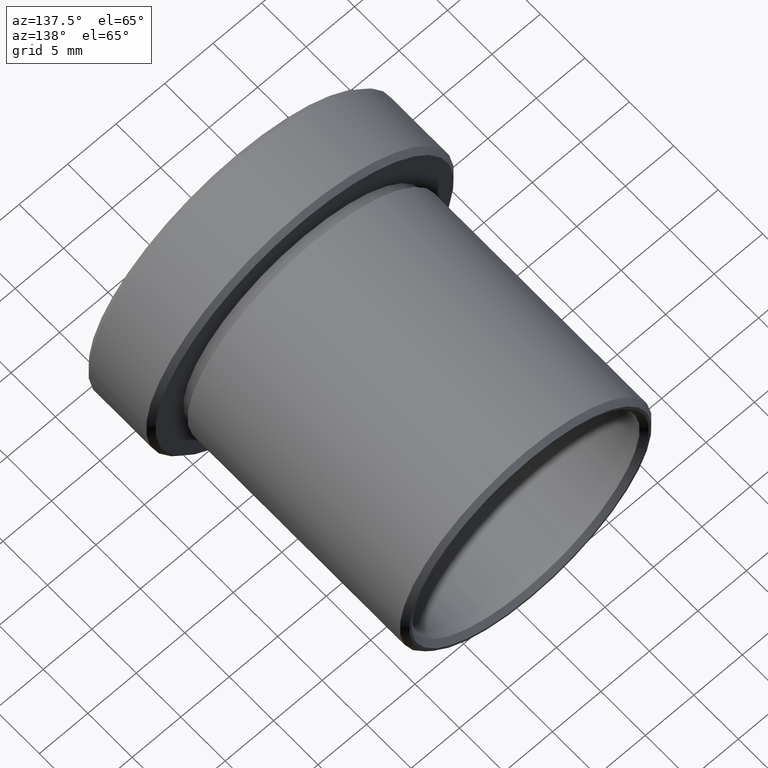
[diagram: clean part render]
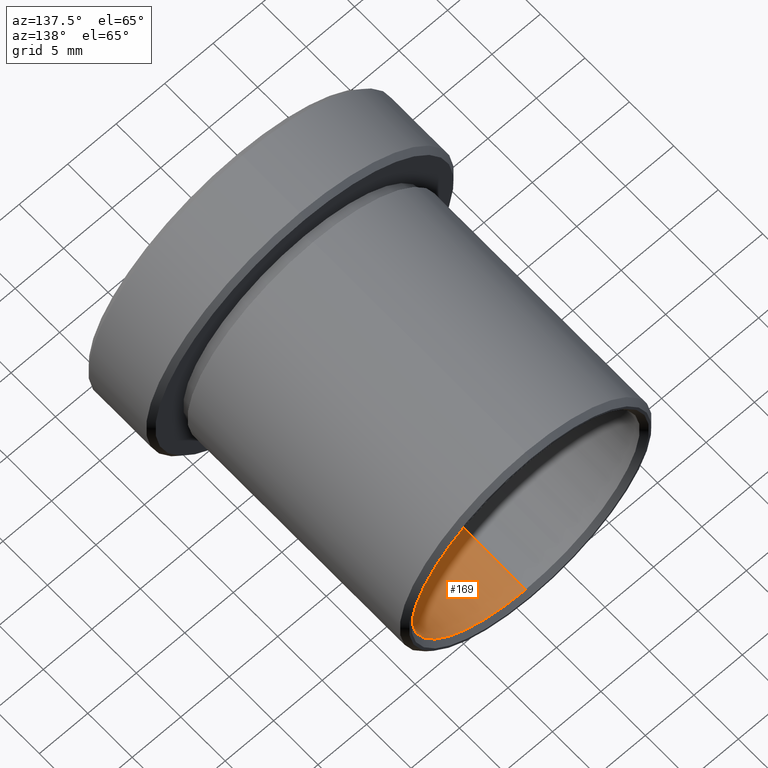
[diagram: same view with one face highlighted and labeled with its STEP entity id]
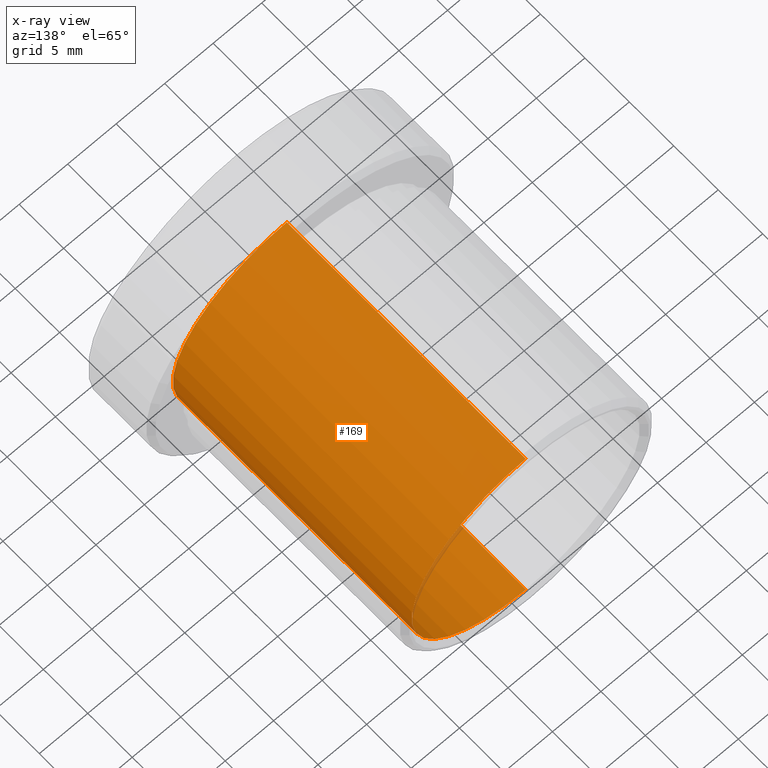
[diagram: x-ray of the same camera — body ghosted, the highlighted face saturated]
A machine part, auxiliary view. The second image highlights one B-rep face of the part: STEP entity #169.
The next image is the same camera in x-ray: the body ghosted, the highlighted face saturated — about 0% of this face is hidden behind the body in this view.
In plain terms, the highlighted cylindrical surface (partial cylindrical patch) has radius 11.75 mm, axis along (-0, 1, -0).
Its self-contained STEP definition (entity closure, byte-faithful):
#13 = CARTESIAN_POINT ( 'NONE',  ( 1.469576158976824500E-015, 26.54285417456689400, -11.75000000000000500 ) ) ;
#16 = DIRECTION ( 'NONE',  ( -0.0000000000000000000, 1.000000000000000000, -0.0000000000000000000 ) ) ;
#42 = ORIENTED_EDGE ( 'NONE', *, *, #133, .T. ) ;
#52 = EDGE_CURVE ( 'NONE', #189, #633, #71, .T. ) ;
#71 = LINE ( 'NONE', #844, #228 ) ;
#85 = CARTESIAN_POINT ( 'NONE',  ( 1.438959988998140800E-015, 44.59859774529311900, -11.75000000000000500 ) ) ;
#114 = ORIENTED_EDGE ( 'NONE', *, *, #52, .T. ) ;
#133 = EDGE_CURVE ( 'NONE', #633, #606, #656, .T. ) ;
#164 = ORIENTED_EDGE ( 'NONE', *, *, #494, .F. ) ;
#169 = ADVANCED_FACE ( 'NONE', ( #742 ), #559, .F. ) ;
#189 = VERTEX_POINT ( 'NONE', #530 ) ;
#228 = VECTOR ( 'NONE', #16, 1000.000000000000000 ) ;
#232 = EDGE_LOOP ( 'NONE', ( #886, #164, #114, #42 ) ) ;
#316 = VECTOR ( 'NONE', #767, 1000.000000000000000 ) ;
#323 = CARTESIAN_POINT ( 'NONE',  ( 0.0000000000000000000, 44.59859774529311900, 0.0000000000000000000 ) ) ;
#334 = CARTESIAN_POINT ( 'NONE',  ( 1.438959988998140800E-015, -0.3571458254331069700, -11.75000000000000500 ) ) ;
#388 = DIRECTION ( 'NONE',  ( 0.0000000000000000000, 0.0000000000000000000, 1.000000000000000000 ) ) ;
#474 = DIRECTION ( 'NONE',  ( 0.0000000000000000000, 0.0000000000000000000, 1.000000000000000000 ) ) ;
#476 = CARTESIAN_POINT ( 'NONE',  ( 0.0000000000000000000, 26.54285417456689400, 11.75000000000000500 ) ) ;
#494 = EDGE_CURVE ( 'NONE', #189, #506, #781, .T. ) ;
#498 = LINE ( 'NONE', #85, #316 ) ;
#506 = VERTEX_POINT ( 'NONE', #334 ) ;
#530 = CARTESIAN_POINT ( 'NONE',  ( 0.0000000000000000000, -0.3571458254331069700, 11.75000000000000500 ) ) ;
#559 = CYLINDRICAL_SURFACE ( 'NONE', #868, 11.75000000000000500 ) ;
#572 = AXIS2_PLACEMENT_3D ( 'NONE', #596, #812, #388 ) ;
#596 = CARTESIAN_POINT ( 'NONE',  ( 0.0000000000000000000, 26.54285417456689400, 0.0000000000000000000 ) ) ;
#606 = VERTEX_POINT ( 'NONE', #13 ) ;
#633 = VERTEX_POINT ( 'NONE', #476 ) ;
#656 = CIRCLE ( 'NONE', #572, 11.75000000000000500 ) ;
#665 = DIRECTION ( 'NONE',  ( 0.0000000000000000000, 0.0000000000000000000, 1.000000000000000000 ) ) ;
#683 = AXIS2_PLACEMENT_3D ( 'NONE', #826, #748, #474 ) ;
#732 = EDGE_CURVE ( 'NONE', #506, #606, #498, .T. ) ;
#742 = FACE_OUTER_BOUND ( 'NONE', #232, .T. ) ;
#748 = DIRECTION ( 'NONE',  ( -0.0000000000000000000, 1.000000000000000000, -0.0000000000000000000 ) ) ;
#767 = DIRECTION ( 'NONE',  ( -0.0000000000000000000, 1.000000000000000000, -0.0000000000000000000 ) ) ;
#781 = CIRCLE ( 'NONE', #683, 11.75000000000000500 ) ;
#812 = DIRECTION ( 'NONE',  ( -0.0000000000000000000, 1.000000000000000000, -0.0000000000000000000 ) ) ;
#826 = CARTESIAN_POINT ( 'NONE',  ( 0.0000000000000000000, -0.3571458254331069700, 0.0000000000000000000 ) ) ;
#844 = CARTESIAN_POINT ( 'NONE',  ( 0.0000000000000000000, 44.59859774529311900, 11.75000000000000500 ) ) ;
#868 = AXIS2_PLACEMENT_3D ( 'NONE', #323, #880, #665 ) ;
#880 = DIRECTION ( 'NONE',  ( -0.0000000000000000000, 1.000000000000000000, -0.0000000000000000000 ) ) ;
#886 = ORIENTED_EDGE ( 'NONE', *, *, #732, .F. ) ;